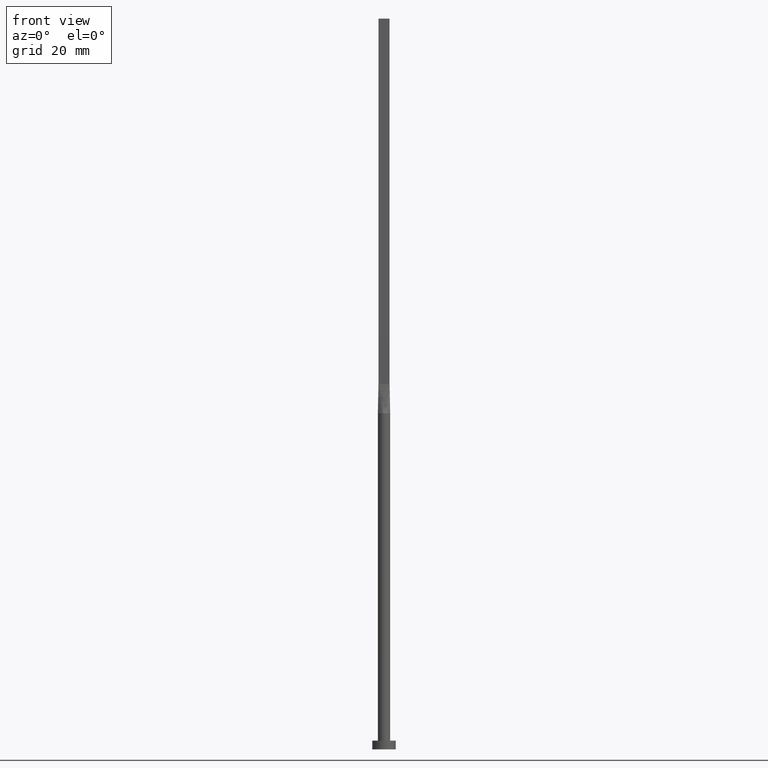
[diagram: clean part render]
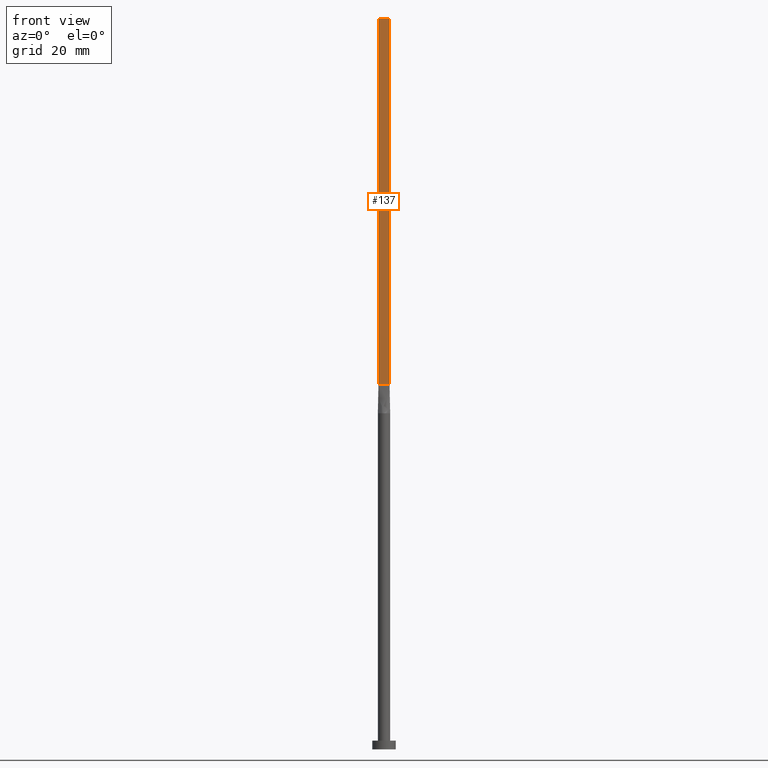
[diagram: same view with one face highlighted and labeled with its STEP entity id]
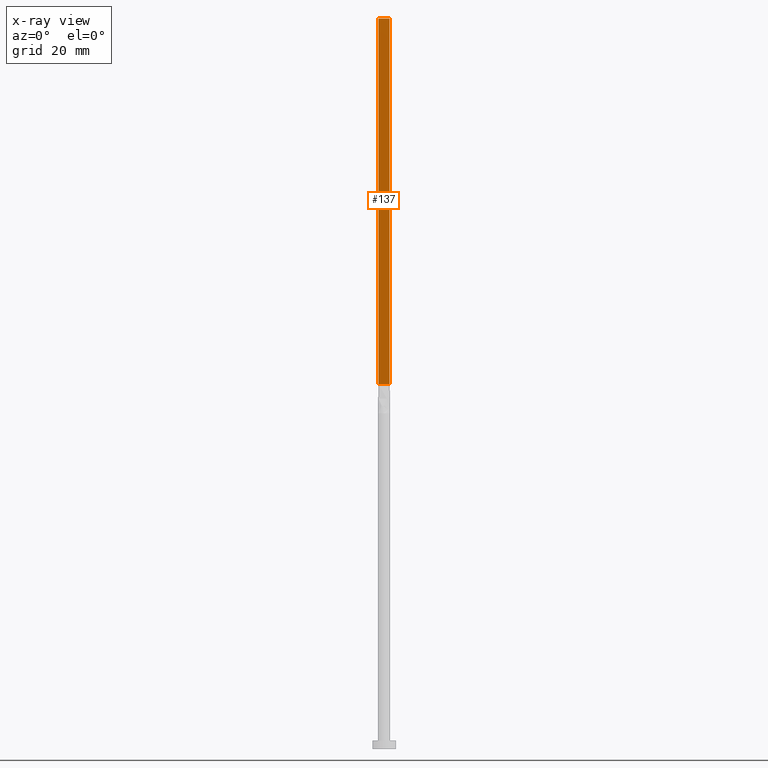
[diagram: x-ray of the same camera — body ghosted, the highlighted face saturated]
A machine part, front view. The second image highlights one B-rep face of the part: STEP entity #137.
The next image is the same camera in x-ray: the body ghosted, the highlighted face saturated — about 0% of this face is hidden behind the body in this view.
In plain terms, the highlighted planar face has unit normal (0, 1, -0).
Its self-contained STEP definition (entity closure, byte-faithful):
#1 = CARTESIAN_POINT ( 'NONE',  ( -1.899999999999999911, -0.4999999999999995559, 250.0000000000000000 ) ) ;
#41 = EDGE_CURVE ( 'NONE', #80, #233, #300, .T. ) ;
#42 = VECTOR ( 'NONE', #256, 1000.000000000000000 ) ;
#70 = VERTEX_POINT ( 'NONE', #166 ) ;
#80 = VERTEX_POINT ( 'NONE', #186 ) ;
#101 = FACE_OUTER_BOUND ( 'NONE', #430, .T. ) ;
#107 = VECTOR ( 'NONE', #139, 1000.000000000000000 ) ;
#120 = ORIENTED_EDGE ( 'NONE', *, *, #41, .F. ) ;
#130 = VECTOR ( 'NONE', #529, 1000.000000000000000 ) ;
#132 = ORIENTED_EDGE ( 'NONE', *, *, #279, .F. ) ;
#137 = ADVANCED_FACE ( 'NONE', ( #101 ), #452, .F. ) ;
#139 = DIRECTION ( 'NONE',  ( 1.000000000000000000, -5.706327223607920020E-17, 0.000000000000000000 ) ) ;
#148 = ORIENTED_EDGE ( 'NONE', *, *, #271, .T. ) ;
#166 = CARTESIAN_POINT ( 'NONE',  ( -1.899999999999999911, -0.4999999999999995559, 250.0000000000000000 ) ) ;
#172 = DIRECTION ( 'NONE',  ( -0.000000000000000000, -0.000000000000000000, -1.000000000000000000 ) ) ;
#183 = CARTESIAN_POINT ( 'NONE',  ( 1.899999999999999023, -0.4999999999999997780, 125.0000000000000000 ) ) ;
#186 = CARTESIAN_POINT ( 'NONE',  ( 1.899999999999999023, -0.4999999999999997780, 250.0000000000000000 ) ) ;
#187 = VECTOR ( 'NONE', #172, 1000.000000000000000 ) ;
#203 = CARTESIAN_POINT ( 'NONE',  ( -1.899999999999999911, -0.4999999999999995559, 250.0000000000000000 ) ) ;
#233 = VERTEX_POINT ( 'NONE', #183 ) ;
#237 = ORIENTED_EDGE ( 'NONE', *, *, #562, .T. ) ;
#247 = CARTESIAN_POINT ( 'NONE',  ( 1.899999999999999023, -0.4999999999999997780, 250.0000000000000000 ) ) ;
#256 = DIRECTION ( 'NONE',  ( -0.000000000000000000, -0.000000000000000000, -1.000000000000000000 ) ) ;
#261 = LINE ( 'NONE', #1, #107 ) ;
#262 = DIRECTION ( 'NONE',  ( -1.000000000000000000, 5.706327223607920020E-17, 0.000000000000000000 ) ) ;
#271 = EDGE_CURVE ( 'NONE', #411, #233, #458, .T. ) ;
#279 = EDGE_CURVE ( 'NONE', #70, #80, #261, .T. ) ;
#300 = LINE ( 'NONE', #247, #42 ) ;
#326 = CARTESIAN_POINT ( 'NONE',  ( -1.899999999999999911, -0.4999999999999995559, 125.0000000000000000 ) ) ;
#335 = LINE ( 'NONE', #203, #187 ) ;
#400 = DIRECTION ( 'NONE',  ( 5.706327223607920020E-17, 1.000000000000000000, -0.000000000000000000 ) ) ;
#411 = VERTEX_POINT ( 'NONE', #542 ) ;
#430 = EDGE_LOOP ( 'NONE', ( #148, #120, #132, #237 ) ) ;
#445 = CARTESIAN_POINT ( 'NONE',  ( -1.899999999999999911, -0.4999999999999995559, 250.0000000000000000 ) ) ;
#452 = PLANE ( 'NONE',  #553 ) ;
#458 = LINE ( 'NONE', #326, #130 ) ;
#529 = DIRECTION ( 'NONE',  ( 1.000000000000000000, -5.706327223607918787E-17, 0.000000000000000000 ) ) ;
#542 = CARTESIAN_POINT ( 'NONE',  ( -1.899999999999999911, -0.4999999999999995559, 125.0000000000000000 ) ) ;
#553 = AXIS2_PLACEMENT_3D ( 'NONE', #445, #400, #262 ) ;
#562 = EDGE_CURVE ( 'NONE', #70, #411, #335, .T. ) ;